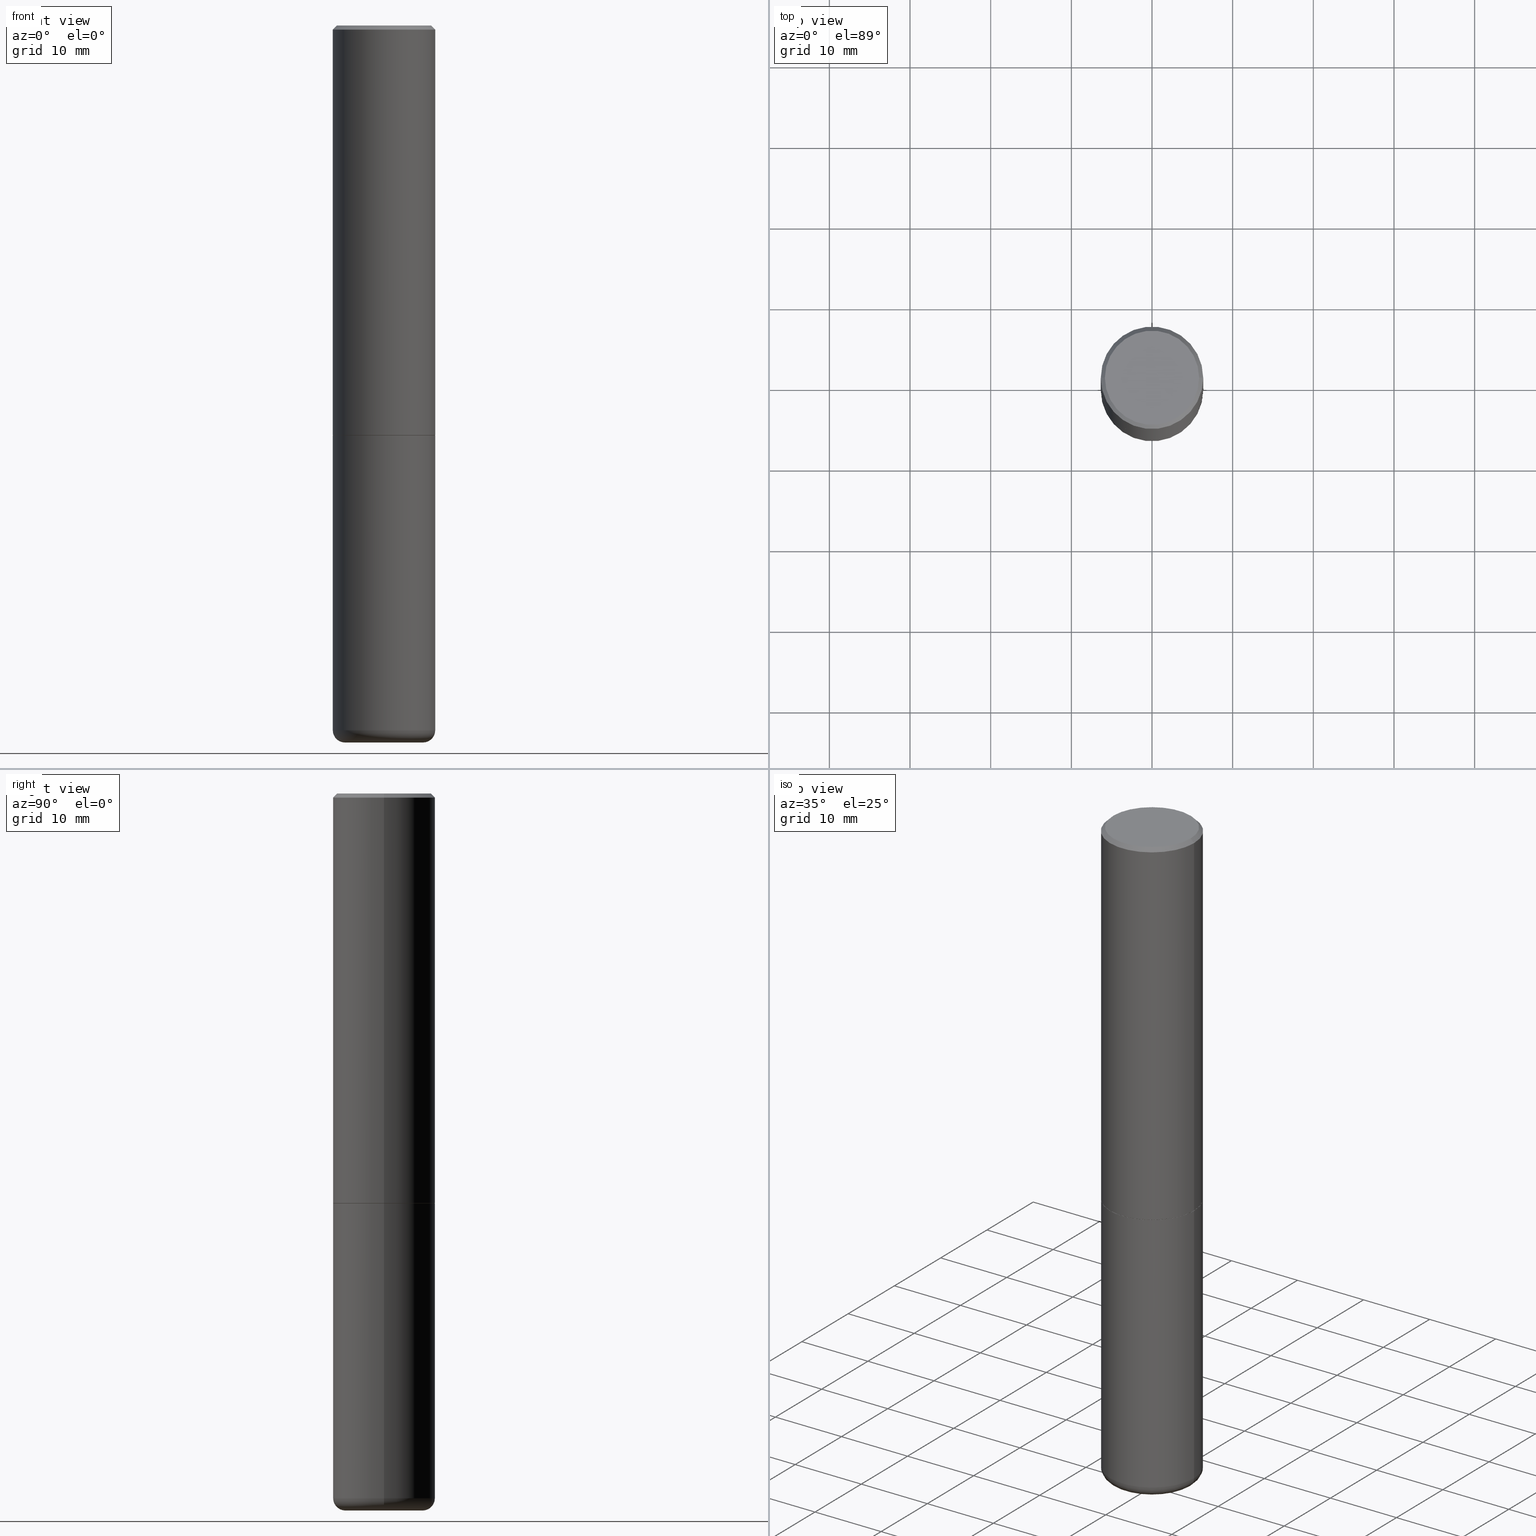
[diagram: canonical four-view strip — front | top / right | iso, engineering-drawing reading convention]
A machine part, canonical four-view strip (front | top / right | iso — engineering-drawing reading convention). The complete STEP part file that produces these views, byte-faithful:
ISO-10303-21;
HEADER;
FILE_DESCRIPTION (( 'STEP AP203' ),
    '1' );
FILE_NAME ('77194.STEP',
    '2024-03-06T16:22:38',
    ( '' ),
    ( '' ),
    'SwSTEP 2.0',
    'SolidWorks 2023',
    '' );
FILE_SCHEMA (( 'CONFIG_CONTROL_DESIGN' ));
ENDSEC;

DATA;
#1 = FACE_OUTER_BOUND ( 'NONE', #159, .T. ) ;
#2 = EDGE_LOOP ( 'NONE', ( #222, #415, #68, #197 ) ) ;
#3 = PLANE ( 'NONE',  #254 ) ;
#4 = VERTEX_POINT ( 'NONE', #63 ) ;
#5 = DATE_TIME_ROLE ( 'classification_date' ) ;
#6 = AXIS2_PLACEMENT_3D ( 'NONE', #11, #8, #188 ) ;
#7 = DATE_TIME_ROLE ( 'creation_date' ) ;
#8 = DIRECTION ( 'NONE',  ( -2.445468806185136597E-29, 3.491481338843145583E-15, 1.000000000000000000 ) ) ;
#9 = MECHANICAL_CONTEXT ( 'NONE', #351, 'mechanical' ) ;
#10 = MANIFOLD_SOLID_BREP ( 'Body-Move/Copy2[2]', #51 ) ;
#11 = CARTESIAN_POINT ( 'NONE',  ( 4.890937612370287172E-31, -6.982962677686310098E-17, -0.02000000000000005593 ) ) ;
#12 = CARTESIAN_POINT ( 'NONE',  ( 0.2500000000000001110, -1.745740669421567467E-15, 1.219044193948984509E-29 ) ) ;
#13 = CONICAL_SURFACE ( 'NONE', #251, 0.2489999999999999991, 0.7853981633975507526 ) ;
#14 = ADVANCED_FACE ( 'NONE', ( #1 ), #344, .F. ) ;
#15 = APPROVAL_PERSON_ORGANIZATION ( #32, #258, #393 ) ;
#16 = DIRECTION ( 'NONE',  ( -2.445468806185136597E-29, 3.491481338843145583E-15, 1.000000000000000000 ) ) ;
#17 = LINE ( 'NONE', #392, #126 ) ;
#18 = APPROVAL ( #104, 'UNSPECIFIED' ) ;
#19 = APPLICATION_CONTEXT ( 'configuration controlled 3d designs of mechanical parts and assemblies' ) ;
#20 = PRODUCT_DEFINITION_FORMATION_WITH_SPECIFIED_SOURCE ( 'ANY', '', #53, .NOT_KNOWN. ) ;
#21 = EDGE_LOOP ( 'NONE', ( #380, #273, #327, #411 ) ) ;
#22 = PERSON_AND_ORGANIZATION_ROLE ( 'creator' ) ;
#23 = EDGE_CURVE ( 'NONE', #323, #281, #96, .T. ) ;
#24 = ORIENTED_EDGE ( 'NONE', *, *, #314, .T. ) ;
#25 = DIRECTION ( 'NONE',  ( 1.000000000000000000, -6.982962677686267499E-15, 4.876225828469310563E-29 ) ) ;
#26 = CIRCLE ( 'NONE', #267, 0.2500000000000000000 ) ;
#27 = AXIS2_PLACEMENT_3D ( 'NONE', #231, #390, #257 ) ;
#28 = DIRECTION ( 'NONE',  ( -2.445468806185136597E-29, 3.491481338843145583E-15, 1.000000000000000000 ) ) ;
#29 = VERTEX_POINT ( 'NONE', #119 ) ;
#30 = DIRECTION ( 'NONE',  ( -1.000000000000000000, 7.105427357600997914E-15, 0.000000000000000000 ) ) ;
#31 = ADVANCED_FACE ( 'NONE', ( #408 ), #331, .T. ) ;
#32 = PERSON_AND_ORGANIZATION ( #388, #342 ) ;
#33 = ORIENTED_EDGE ( 'NONE', *, *, #162, .T. ) ;
#34 = CONICAL_SURFACE ( 'NONE', #239, 0.2499999999999999167, 0.7853981633974469467 ) ;
#35 = CIRCLE ( 'NONE', #154, 0.05999999999999994227 ) ;
#36 = ORIENTED_EDGE ( 'NONE', *, *, #162, .F. ) ;
#37 = CARTESIAN_POINT ( 'NONE',  ( 0.2500000000000000000, -8.728703347107857054E-15, -2.000000000000000000 ) ) ;
#38 = CARTESIAN_POINT ( 'NONE',  ( -0.2500000000000001110, 1.776356839400251254E-15, -1.229733772563727006E-29 ) ) ;
#39 = DATE_AND_TIME ( #136, #44 ) ;
#40 = DIRECTION ( 'NONE',  ( 1.000000000000000000, -6.982962677686266711E-15, 4.876176775795935793E-29 ) ) ;
#41 = ADVANCED_FACE ( 'NONE', ( #406 ), #34, .T. ) ;
#42 = PRODUCT_DEFINITION ( 'UNKNOWN', '', #20, #410 ) ;
#43 = DIRECTION ( 'NONE',  ( 1.000000000000000000, -6.982962677686266711E-15, 4.876176775795935793E-29 ) ) ;
#44 = LOCAL_TIME ( 11, 22, 38.00000000000000000, #169 ) ;
#45 = CARTESIAN_POINT ( 'NONE',  ( 0.000000000000000000, 0.000000000000000000, 0.000000000000000000 ) ) ;
#46 = LINE ( 'NONE', #181, #55 ) ;
#47 = LINE ( 'NONE', #183, #194 ) ;
#48 = CARTESIAN_POINT ( 'NONE',  ( -0.2499999999999999722, -1.023433896622016898E-14, -3.439999999999999947 ) ) ;
#49 = DIRECTION ( 'NONE',  ( -1.000000000000000000, 6.982962677686265922E-15, -4.876176775795935793E-29 ) ) ;
#50 = CARTESIAN_POINT ( 'NONE',  ( 8.559140821647976968E-29, -1.222018468595100934E-14, -3.500000000000000000 ) ) ;
#51 = CLOSED_SHELL ( 'NONE', ( #103, #359, #146, #41, #207, #221, #14, #345 ) ) ;
#52 = CC_DESIGN_APPROVAL ( #258, ( #42 ) ) ;
#53 = PRODUCT ( '77194', '77194', '', ( #9 ) ) ;
#54 = ORIENTED_EDGE ( 'NONE', *, *, #108, .F. ) ;
#55 = VECTOR ( 'NONE', #339, 39.37007874015748143 ) ;
#56 = AXIS2_PLACEMENT_3D ( 'NONE', #45, #179, #298 ) ;
#57 = FACE_OUTER_BOUND ( 'NONE', #279, .T. ) ;
#58 = EDGE_CURVE ( 'NONE', #357, #249, #316, .T. ) ;
#59 = VERTEX_POINT ( 'NONE', #404 ) ;
#60 = ORIENTED_EDGE ( 'NONE', *, *, #212, .T. ) ;
#61 = CIRCLE ( 'NONE', #158, 0.05999999999999994227 ) ;
#62 = VECTOR ( 'NONE', #264, 39.37007874015748143 ) ;
#63 = CARTESIAN_POINT ( 'NONE',  ( 0.1899999999999999745, -1.354694759471140096E-14, -3.500000000000000000 ) ) ;
#64 = ORIENTED_EDGE ( 'NONE', *, *, #195, .T. ) ;
#65 = DIRECTION ( 'NONE',  ( -2.445468806185136597E-29, 3.491481338843145583E-15, 1.000000000000000000 ) ) ;
#66 = VERTEX_POINT ( 'NONE', #48 ) ;
#67 = DIRECTION ( 'NONE',  ( -2.445468806185136877E-29, 3.491481338843145188E-15, 1.000000000000000000 ) ) ;
#68 = ORIENTED_EDGE ( 'NONE', *, *, #240, .F. ) ;
#69 = CARTESIAN_POINT ( 'NONE',  ( 8.412412693276869938E-29, -1.201069580562042103E-14, -3.439999999999999947 ) ) ;
#70 = AXIS2_PLACEMENT_3D ( 'NONE', #143, #114, #301 ) ;
#71 = TOROIDAL_SURFACE ( 'NONE', #361, 0.1899999999999999745, 0.05999999999999995615 ) ;
#72 = FACE_OUTER_BOUND ( 'NONE', #350, .T. ) ;
#73 = PERSON_AND_ORGANIZATION_ROLE ( 'classification_officer' ) ;
#74 = DIRECTION ( 'NONE',  ( -2.445468806185136597E-29, 3.491481338843145583E-15, 1.000000000000000000 ) ) ;
#75 = APPLICATION_PROTOCOL_DEFINITION ( 'international standard', 'config_control_design', 1994, #351 ) ;
#76 = DATE_AND_TIME ( #398, #113 ) ;
#77 = AXIS2_PLACEMENT_3D ( 'NONE', #377, #338, #82 ) ;
#78 = FACE_OUTER_BOUND ( 'NONE', #2, .T. ) ;
#79 = EDGE_CURVE ( 'NONE', #59, #357, #184, .T. ) ;
#80 = DIRECTION ( 'NONE',  ( -2.445468806185136597E-29, 3.491481338843145583E-15, 1.000000000000000000 ) ) ;
#81 = DIRECTION ( 'NONE',  ( -1.000000000000000000, 6.982962677686267499E-15, 0.000000000000000000 ) ) ;
#82 = DIRECTION ( 'NONE',  ( -1.000000000000000000, 6.982962677686267499E-15, 0.000000000000000000 ) ) ;
#83 = CARTESIAN_POINT ( 'NONE',  ( 4.890937612370273194E-29, -6.982962677686291165E-15, -2.000000000000000000 ) ) ;
#84 = CIRCLE ( 'NONE', #373, 0.2500000000000002776 ) ;
#85 = DIRECTION ( 'NONE',  ( 1.000000000000000000, -6.982962677686267499E-15, 0.000000000000000000 ) ) ;
#86 = CC_DESIGN_PERSON_AND_ORGANIZATION_ASSIGNMENT ( #106, #237, ( #20 ) ) ;
#87 = ORIENTED_EDGE ( 'NONE', *, *, #314, .F. ) ;
#88 = TOROIDAL_SURFACE ( 'NONE', #260, 0.1899999999999999745, 0.05999999999999995615 ) ;
#89 = EDGE_CURVE ( 'NONE', #4, #229, #247, .T. ) ;
#90 = ORIENTED_EDGE ( 'NONE', *, *, #399, .F. ) ;
#91 = CARTESIAN_POINT ( 'NONE',  ( 2.087702828670439639E-46, -2.980686340760894400E-32, -8.537024980200822558E-18 ) ) ;
#92 = CC_DESIGN_DATE_AND_TIME_ASSIGNMENT ( #137, #5, ( #295 ) ) ;
#93 = ORIENTED_EDGE ( 'NONE', *, *, #276, .F. ) ;
#94 = CARTESIAN_POINT ( 'NONE',  ( 4.890937612370273194E-29, -6.982962677686291165E-15, -2.000000000000000000 ) ) ;
#95 = ORIENTED_EDGE ( 'NONE', *, *, #228, .T. ) ;
#96 = CIRCLE ( 'NONE', #230, 0.2500000000000000000 ) ;
#97 = ORIENTED_EDGE ( 'NONE', *, *, #79, .T. ) ;
#98 = DIRECTION ( 'NONE',  ( 1.000000000000000000, -6.982962677686266711E-15, 0.000000000000000000 ) ) ;
#99 = SHAPE_DEFINITION_REPRESENTATION ( #182, #144 ) ;
#100 = APPROVAL_STATUS ( 'not_yet_approved' ) ;
#101 = ORIENTED_EDGE ( 'NONE', *, *, #306, .F. ) ;
#102 = DIRECTION ( 'NONE',  ( 1.000000000000000000, -6.982962677686266711E-15, 4.876176775795935793E-29 ) ) ;
#103 = ADVANCED_FACE ( 'NONE', ( #269 ), #13, .T. ) ;
#104 = APPROVAL_STATUS ( 'not_yet_approved' ) ;
#105 = CARTESIAN_POINT ( 'NONE',  ( 1.606081415867840870E-15, 0.2299999999999999267, -8.073092204240237214E-16 ) ) ;
#106 = PERSON_AND_ORGANIZATION ( #388, #342 ) ;
#107 = CARTESIAN_POINT ( 'NONE',  ( 4.890937612370273194E-29, -6.982962677686291165E-15, -2.000000000000000000 ) ) ;
#108 = EDGE_CURVE ( 'NONE', #163, #59, #84, .T. ) ;
#109 = FACE_OUTER_BOUND ( 'NONE', #347, .T. ) ;
#110 = DIRECTION ( 'NONE',  ( -2.445468806185136877E-29, 3.491481338843145188E-15, 1.000000000000000000 ) ) ;
#111 = APPROVAL_STATUS ( 'not_yet_approved' ) ;
#112 = AXIS2_PLACEMENT_3D ( 'NONE', #308, #381, #250 ) ;
#113 = LOCAL_TIME ( 11, 22, 38.00000000000000000, #238 ) ;
#114 = DIRECTION ( 'NONE',  ( -2.445468806185136597E-29, 3.491481338843145583E-15, 1.000000000000000000 ) ) ;
#115 = CC_DESIGN_PERSON_AND_ORGANIZATION_ASSIGNMENT ( #364, #208, ( #20 ) ) ;
#116 = DIRECTION ( 'NONE',  ( -2.445468806185136597E-29, 3.491481338843145583E-15, 1.000000000000000000 ) ) ;
#117 = CYLINDRICAL_SURFACE ( 'NONE', #132, 0.2500000000000001110 ) ;
#118 = FACE_OUTER_BOUND ( 'NONE', #315, .T. ) ;
#119 = CARTESIAN_POINT ( 'NONE',  ( 0.2489999999999999991, -8.721720384430171040E-15, -2.000000000000000000 ) ) ;
#120 = AXIS2_PLACEMENT_3D ( 'NONE', #107, #245, #337 ) ;
#121 = EDGE_CURVE ( 'NONE', #417, #281, #46, .T. ) ;
#122 = DIRECTION ( 'NONE',  ( 1.000000000000000000, -6.982962677686266711E-15, 0.000000000000000000 ) ) ;
#123 = EDGE_LOOP ( 'NONE', ( #193, #134 ) ) ;
#124 = CYLINDRICAL_SURFACE ( 'NONE', #112, 0.2500000000000001110 ) ;
#125 = ORIENTED_EDGE ( 'NONE', *, *, #189, .F. ) ;
#126 = VECTOR ( 'NONE', #335, 39.37007874015748143 ) ;
#127 = AXIS2_PLACEMENT_3D ( 'NONE', #355, #65, #98 ) ;
#128 = ORIENTED_EDGE ( 'NONE', *, *, #121, .F. ) ;
#129 = ORIENTED_EDGE ( 'NONE', *, *, #382, .F. ) ;
#130 = LINE ( 'NONE', #330, #326 ) ;
#131 = CARTESIAN_POINT ( 'NONE',  ( 2.087702828670439639E-46, -2.980686340760894400E-32, -8.537024980200822558E-18 ) ) ;
#132 = AXIS2_PLACEMENT_3D ( 'NONE', #372, #16, #40 ) ;
#133 = EDGE_LOOP ( 'NONE', ( #24, #196, #384, #125 ) ) ;
#134 = ORIENTED_EDGE ( 'NONE', *, *, #180, .F. ) ;
#135 = DIRECTION ( 'NONE',  ( 2.438088387897960049E-29, -3.491481338843145188E-15, -1.000000000000000000 ) ) ;
#136 = CALENDAR_DATE ( 2024, 6, 3 ) ;
#137 = DATE_AND_TIME ( #292, #376 ) ;
#138 = CC_DESIGN_SECURITY_CLASSIFICATION ( #295, ( #20 ) ) ;
#139 = CARTESIAN_POINT ( 'NONE',  ( 0.2499999999999999722, -1.375643647504198770E-14, -3.439999999999999947 ) ) ;
#140 = APPROVAL_ROLE ( '' ) ;
#141 = CARTESIAN_POINT ( 'NONE',  ( 4.888492143564087591E-29, -6.979471196347447369E-15, -1.998999999999999888 ) ) ;
#142 = DIRECTION ( 'NONE',  ( 2.438088387897960049E-29, -3.491481338843145188E-15, -1.000000000000000000 ) ) ;
#143 = CARTESIAN_POINT ( 'NONE',  ( 4.890937612370273194E-29, -6.982962677686291165E-15, -2.000000000000000000 ) ) ;
#144 = ADVANCED_BREP_SHAPE_REPRESENTATION ( '77194', ( #155, #10, #56 ), #209 ) ;
#145 = DIRECTION ( 'NONE',  ( -2.445468806185136597E-29, 3.491481338843145583E-15, 1.000000000000000000 ) ) ;
#146 = ADVANCED_FACE ( 'NONE', ( #187 ), #386, .T. ) ;
#147 = DIRECTION ( 'NONE',  ( 2.438088387897960049E-29, -3.491481338843145188E-15, -1.000000000000000000 ) ) ;
#148 = AXIS2_PLACEMENT_3D ( 'NONE', #242, #151, #43 ) ;
#149 = DIRECTION ( 'NONE',  ( 1.000000000000000000, -6.982962677686273021E-15, 0.000000000000000000 ) ) ;
#150 = DIRECTION ( 'NONE',  ( -6.982962677686266711E-15, -1.000000000000000000, 3.491481338843145583E-15 ) ) ;
#151 = DIRECTION ( 'NONE',  ( -2.445468806185136597E-29, 3.491481338843145583E-15, 1.000000000000000000 ) ) ;
#152 = CARTESIAN_POINT ( 'NONE',  ( 0.2499999999999999167, -1.784954126219745400E-15, -0.02000000000000005593 ) ) ;
#153 = CARTESIAN_POINT ( 'NONE',  ( -0.2500000000000002776, -1.748293572161900530E-15, -1.998999999999999888 ) ) ;
#154 = AXIS2_PLACEMENT_3D ( 'NONE', #198, #320, #30 ) ;
#155 = MANIFOLD_SOLID_BREP ( 'Body-Move/Copy2[1]', #223 ) ;
#156 = EDGE_CURVE ( 'NONE', #281, #323, #341, .T. ) ;
#157 = DIRECTION ( 'NONE',  ( 1.000000000000000000, -6.982962677686266711E-15, 0.000000000000000000 ) ) ;
#158 = AXIS2_PLACEMENT_3D ( 'NONE', #272, #150, #300 ) ;
#159 = EDGE_LOOP ( 'NONE', ( #87, #101 ) ) ;
#160 = CARTESIAN_POINT ( 'NONE',  ( -0.1899999999999999745, -1.055224622711349575E-14, -3.500000000000000000 ) ) ;
#161 = ORIENTED_EDGE ( 'NONE', *, *, #313, .T. ) ;
#162 = EDGE_CURVE ( 'NONE', #66, #323, #47, .T. ) ;
#163 = VERTEX_POINT ( 'NONE', #153 ) ;
#164 = LINE ( 'NONE', #38, #360 ) ;
#165 = CIRCLE ( 'NONE', #214, 0.2299999999999999267 ) ;
#166 = EDGE_LOOP ( 'NONE', ( #172, #319, #161, #253 ) ) ;
#167 = DIRECTION ( 'NONE',  ( 1.000000000000000000, -6.982962677686270655E-15, 0.000000000000000000 ) ) ;
#168 = EDGE_CURVE ( 'NONE', #4, #417, #61, .T. ) ;
#169 = COORDINATED_UNIVERSAL_TIME_OFFSET ( 5, 0, .BEHIND. ) ;
#170 = ORIENTED_EDGE ( 'NONE', *, *, #336, .T. ) ;
#171 = DIRECTION ( 'NONE',  ( -2.445468806185136597E-29, 3.491481338843145583E-15, 1.000000000000000000 ) ) ;
#172 = ORIENTED_EDGE ( 'NONE', *, *, #336, .F. ) ;
#173 = CYLINDRICAL_SURFACE ( 'NONE', #375, 0.2500000000000000000 ) ;
#174 = CC_DESIGN_PERSON_AND_ORGANIZATION_ASSIGNMENT ( #362, #73, ( #295 ) ) ;
#175 = COORDINATED_UNIVERSAL_TIME_OFFSET ( 5, 0, .BEHIND. ) ;
#176 = CARTESIAN_POINT ( 'NONE',  ( -0.2489999999999999991, -5.213711265643641709E-15, -2.000000000000000000 ) ) ;
#177 = CIRCLE ( 'NONE', #285, 0.2500000000000000000 ) ;
#178 = DIRECTION ( 'NONE',  ( -2.445468806185136597E-29, 3.491481338843145583E-15, 1.000000000000000000 ) ) ;
#179 = DIRECTION ( 'NONE',  ( 0.000000000000000000, 0.000000000000000000, 1.000000000000000000 ) ) ;
#180 = EDGE_CURVE ( 'NONE', #229, #4, #309, .T. ) ;
#181 = CARTESIAN_POINT ( 'NONE',  ( 0.2500000000000000000, -1.745740669421566678E-15, 1.219044193948983948E-29 ) ) ;
#182 = PRODUCT_DEFINITION_SHAPE ( 'NONE', 'NONE',  #42 ) ;
#183 = CARTESIAN_POINT ( 'NONE',  ( -0.2500000000000000000, 1.776356839400250465E-15, -1.229733772563726445E-29 ) ) ;
#184 = LINE ( 'NONE', #12, #414 ) ;
#185 = CARTESIAN_POINT ( 'NONE',  ( 8.412412693276869938E-29, -1.201069580562042103E-14, -3.439999999999999947 ) ) ;
#186 = DIRECTION ( 'NONE',  ( 1.000000000000000000, -6.982962677686273021E-15, 0.000000000000000000 ) ) ;
#187 = FACE_OUTER_BOUND ( 'NONE', #352, .T. ) ;
#188 = DIRECTION ( 'NONE',  ( 1.000000000000000000, -6.982962677686267499E-15, 0.000000000000000000 ) ) ;
#189 = EDGE_CURVE ( 'NONE', #29, #59, #17, .T. ) ;
#190 = VECTOR ( 'NONE', #294, 39.37007874015748143 ) ;
#191 = APPROVAL ( #111, 'UNSPECIFIED' ) ;
#192 = PERSON_AND_ORGANIZATION_ROLE ( 'design_owner' ) ;
#193 = ORIENTED_EDGE ( 'NONE', *, *, #89, .F. ) ;
#194 = VECTOR ( 'NONE', #110, 39.37007874015748143 ) ;
#195 = EDGE_CURVE ( 'NONE', #66, #417, #177, .T. ) ;
#196 = ORIENTED_EDGE ( 'NONE', *, *, #382, .T. ) ;
#197 = ORIENTED_EDGE ( 'NONE', *, *, #168, .F. ) ;
#198 = CARTESIAN_POINT ( 'NONE',  ( -0.1899999999999999745, -1.066066460767623105E-14, -3.439999999999999947 ) ) ;
#199 = APPROVAL_DATE_TIME ( #39, #18 ) ;
#200 = ORIENTED_EDGE ( 'NONE', *, *, #240, .T. ) ;
#201 = AXIS2_PLACEMENT_3D ( 'NONE', #131, #324, #290 ) ;
#202 = ORIENTED_EDGE ( 'NONE', *, *, #313, .F. ) ;
#203 = DIRECTION ( 'NONE',  ( -2.445468806185136597E-29, 3.491481338843145583E-15, 1.000000000000000000 ) ) ;
#204 = DIMENSIONAL_EXPONENTS ( 1.000000000000000000, 0.000000000000000000, 0.000000000000000000, 0.000000000000000000, 0.000000000000000000, 0.000000000000000000, 0.000000000000000000 ) ;
#205 = COORDINATED_UNIVERSAL_TIME_OFFSET ( 5, 0, .BEHIND. ) ;
#206 = DIRECTION ( 'NONE',  ( 1.000000000000000000, -6.982962677686265133E-15, 4.883557194083112340E-29 ) ) ;
#207 = ADVANCED_FACE ( 'NONE', ( #413 ), #124, .T. ) ;
#208 = PERSON_AND_ORGANIZATION_ROLE ( 'design_supplier' ) ;
#209 =( GEOMETRIC_REPRESENTATION_CONTEXT ( 3 ) GLOBAL_UNCERTAINTY_ASSIGNED_CONTEXT ( ( #370 ) ) GLOBAL_UNIT_ASSIGNED_CONTEXT ( ( #403, #407, #340 ) ) REPRESENTATION_CONTEXT ( 'NONE', 'WORKASPACE' ) );
#210 = DIRECTION ( 'NONE',  ( 2.445468806185136597E-29, -3.491481338843145583E-15, -1.000000000000000000 ) ) ;
#211 = DIRECTION ( 'NONE',  ( -1.000000000000000000, 6.982962677686265922E-15, -4.876176775795935793E-29 ) ) ;
#212 = EDGE_CURVE ( 'NONE', #59, #163, #277, .T. ) ;
#213 = CARTESIAN_POINT ( 'NONE',  ( 4.890937612370273194E-29, -6.982962677686291165E-15, -2.000000000000000000 ) ) ;
#214 = AXIS2_PLACEMENT_3D ( 'NONE', #91, #220, #25 ) ;
#215 = DIRECTION ( 'NONE',  ( -2.445468806185136597E-29, 3.491481338843145583E-15, 1.000000000000000000 ) ) ;
#216 = AXIS2_PLACEMENT_3D ( 'NONE', #305, #178, #149 ) ;
#217 = CIRCLE ( 'NONE', #232, 0.2499999999999999167 ) ;
#218 = CARTESIAN_POINT ( 'NONE',  ( 4.888492143564087591E-29, -6.979471196347447369E-15, -1.998999999999999888 ) ) ;
#219 = EDGE_LOOP ( 'NONE', ( #36, #64, #283, #374 ) ) ;
#220 = DIRECTION ( 'NONE',  ( -2.445468806185136597E-29, 3.491481338843145583E-15, 1.000000000000000000 ) ) ;
#221 = ADVANCED_FACE ( 'NONE', ( #57 ), #293, .T. ) ;
#222 = ORIENTED_EDGE ( 'NONE', *, *, #89, .T. ) ;
#223 = CLOSED_SHELL ( 'NONE', ( #291, #405, #328, #31, #248, #235 ) ) ;
#224 = APPROVAL_PERSON_ORGANIZATION ( #401, #191, #140 ) ;
#225 = ORIENTED_EDGE ( 'NONE', *, *, #299, .T. ) ;
#226 = ORIENTED_EDGE ( 'NONE', *, *, #58, .F. ) ;
#227 = FACE_OUTER_BOUND ( 'NONE', #307, .T. ) ;
#228 = EDGE_CURVE ( 'NONE', #252, #389, #165, .T. ) ;
#229 = VERTEX_POINT ( 'NONE', #160 ) ;
#230 = AXIS2_PLACEMENT_3D ( 'NONE', #83, #215, #366 ) ;
#231 = CARTESIAN_POINT ( 'NONE',  ( 4.890937612370273194E-29, -6.982962677686291165E-15, -2.000000000000000000 ) ) ;
#232 = AXIS2_PLACEMENT_3D ( 'NONE', #371, #334, #85 ) ;
#233 = DIRECTION ( 'NONE',  ( -1.000000000000000000, 6.982962677686265922E-15, -4.876176775795935793E-29 ) ) ;
#234 = APPROVAL_ROLE ( '' ) ;
#235 = ADVANCED_FACE ( 'NONE', ( #280 ), #416, .T. ) ;
#236 = DIRECTION ( 'NONE',  ( -2.445468806185136597E-29, 3.491481338843145583E-15, 1.000000000000000000 ) ) ;
#237 = PERSON_AND_ORGANIZATION_ROLE ( 'creator' ) ;
#238 = COORDINATED_UNIVERSAL_TIME_OFFSET ( 5, 0, .BEHIND. ) ;
#239 = AXIS2_PLACEMENT_3D ( 'NONE', #262, #210, #81 ) ;
#240 = EDGE_CURVE ( 'NONE', #417, #66, #26, .T. ) ;
#241 = CARTESIAN_POINT ( 'NONE',  ( 8.412412693276869938E-29, -1.201069580562042103E-14, -3.439999999999999947 ) ) ;
#242 = CARTESIAN_POINT ( 'NONE',  ( 0.000000000000000000, 0.000000000000000000, 0.000000000000000000 ) ) ;
#243 = LINE ( 'NONE', #152, #62 ) ;
#244 = CC_DESIGN_PERSON_AND_ORGANIZATION_ASSIGNMENT ( #343, #22, ( #42 ) ) ;
#245 = DIRECTION ( 'NONE',  ( -2.438088387897960049E-29, 3.491481338843145188E-15, 1.000000000000000000 ) ) ;
#246 = PLANE ( 'NONE',  #368 ) ;
#247 = CIRCLE ( 'NONE', #216, 0.1899999999999999745 ) ;
#248 = ADVANCED_FACE ( 'NONE', ( #358 ), #88, .T. ) ;
#249 = VERTEX_POINT ( 'NONE', #259 ) ;
#250 = DIRECTION ( 'NONE',  ( 1.000000000000000000, -6.982962677686266711E-15, 4.876176775795935793E-29 ) ) ;
#251 = AXIS2_PLACEMENT_3D ( 'NONE', #213, #116, #297 ) ;
#252 = VERTEX_POINT ( 'NONE', #394 ) ;
#253 = ORIENTED_EDGE ( 'NONE', *, *, #399, .T. ) ;
#254 = AXIS2_PLACEMENT_3D ( 'NONE', #397, #142, #211 ) ;
#255 = VERTEX_POINT ( 'NONE', #282 ) ;
#256 = ORIENTED_EDGE ( 'NONE', *, *, #189, .T. ) ;
#257 = DIRECTION ( 'NONE',  ( 1.000000000000000000, -6.982962677686266711E-15, 0.000000000000000000 ) ) ;
#258 = APPROVAL ( #100, 'UNSPECIFIED' ) ;
#259 = CARTESIAN_POINT ( 'NONE',  ( -0.2499999999999999167, 1.675911042644703182E-15, -0.02000000000000005593 ) ) ;
#260 = AXIS2_PLACEMENT_3D ( 'NONE', #418, #74, #206 ) ;
#261 = LENGTH_MEASURE_WITH_UNIT ( LENGTH_MEASURE( 0.02539999999999999897 ), #271 );
#262 = CARTESIAN_POINT ( 'NONE',  ( 4.890937612370287172E-31, -6.982962677686310098E-17, -0.02000000000000005593 ) ) ;
#263 = APPROVAL_DATE_TIME ( #266, #258 ) ;
#264 = DIRECTION ( 'NONE',  ( 0.7071067811865465735, -7.319954787623252890E-15, -0.7071067811865484609 ) ) ;
#265 = DATE_AND_TIME ( #296, #310 ) ;
#266 = DATE_AND_TIME ( #303, #387 ) ;
#267 = AXIS2_PLACEMENT_3D ( 'NONE', #69, #203, #167 ) ;
#268 = CC_DESIGN_APPROVAL ( #191, ( #20 ) ) ;
#269 = FACE_OUTER_BOUND ( 'NONE', #133, .T. ) ;
#270 = DIRECTION ( 'NONE',  ( -2.445468806185136877E-29, 3.491481338843145188E-15, 1.000000000000000000 ) ) ;
#271 =( LENGTH_UNIT ( ) NAMED_UNIT ( * ) SI_UNIT ( $, .METRE. ) );
#272 = CARTESIAN_POINT ( 'NONE',  ( 0.1899999999999999745, -1.333745871438081265E-14, -3.439999999999999947 ) ) ;
#273 = ORIENTED_EDGE ( 'NONE', *, *, #180, .T. ) ;
#274 = ORIENTED_EDGE ( 'NONE', *, *, #156, .F. ) ;
#275 = DIRECTION ( 'NONE',  ( 1.000000000000000000, -6.982962677686270655E-15, 0.000000000000000000 ) ) ;
#276 = EDGE_CURVE ( 'NONE', #163, #249, #164, .T. ) ;
#277 = CIRCLE ( 'NONE', #348, 0.2500000000000002776 ) ;
#278 = APPROVAL_PERSON_ORGANIZATION ( #396, #18, #234 ) ;
#279 = EDGE_LOOP ( 'NONE', ( #129, #356, #256, #54 ) ) ;
#280 = FACE_OUTER_BOUND ( 'NONE', #123, .T. ) ;
#281 = VERTEX_POINT ( 'NONE', #37 ) ;
#282 = CARTESIAN_POINT ( 'NONE',  ( -0.2489999999999999991, -5.208412811295418518E-15, -2.000000000000000000 ) ) ;
#283 = ORIENTED_EDGE ( 'NONE', *, *, #121, .T. ) ;
#284 = CARTESIAN_POINT ( 'NONE',  ( -0.2500000000000000000, -7.720472402253106025E-15, -2.000000000000000000 ) ) ;
#285 = AXIS2_PLACEMENT_3D ( 'NONE', #241, #318, #275 ) ;
#286 = CIRCLE ( 'NONE', #127, 0.2489999999999999991 ) ;
#287 = ORIENTED_EDGE ( 'NONE', *, *, #108, .T. ) ;
#288 = CARTESIAN_POINT ( 'NONE',  ( 0.000000000000000000, 0.000000000000000000, 0.000000000000000000 ) ) ;
#289 = ORIENTED_EDGE ( 'NONE', *, *, #228, .F. ) ;
#290 = DIRECTION ( 'NONE',  ( 1.000000000000000000, -6.982962677686267499E-15, 4.876225828469310563E-29 ) ) ;
#291 = ADVANCED_FACE ( 'NONE', ( #72 ), #173, .T. ) ;
#292 = CALENDAR_DATE ( 2024, 6, 3 ) ;
#293 = CONICAL_SURFACE ( 'NONE', #395, 0.2489999999999999991, 0.7853981633975507526 ) ;
#294 = DIRECTION ( 'NONE',  ( -0.7071067811866199593, 7.493145998870616062E-15, 0.7071067811864750752 ) ) ;
#295 = SECURITY_CLASSIFICATION ( '', '', #332 ) ;
#296 = CALENDAR_DATE ( 2024, 6, 3 ) ;
#297 = DIRECTION ( 'NONE',  ( 1.000000000000000000, -6.982962677686266711E-15, 0.000000000000000000 ) ) ;
#298 = DIRECTION ( 'NONE',  ( 1.000000000000000000, 0.000000000000000000, 0.000000000000000000 ) ) ;
#299 = EDGE_CURVE ( 'NONE', #389, #252, #325, .T. ) ;
#300 = DIRECTION ( 'NONE',  ( 1.000000000000000000, -6.982962677686274599E-15, 0.000000000000000000 ) ) ;
#301 = DIRECTION ( 'NONE',  ( 1.000000000000000000, -6.982962677686266711E-15, 0.000000000000000000 ) ) ;
#302 = CIRCLE ( 'NONE', #27, 0.2489999999999999991 ) ;
#303 = CALENDAR_DATE ( 2024, 6, 3 ) ;
#304 = DIRECTION ( 'NONE',  ( 1.000000000000000000, -6.982962677686265133E-15, 4.883557194083112340E-29 ) ) ;
#305 = CARTESIAN_POINT ( 'NONE',  ( 8.559140821647976968E-29, -1.222018468595100934E-14, -3.500000000000000000 ) ) ;
#306 = EDGE_CURVE ( 'NONE', #255, #29, #302, .T. ) ;
#307 = EDGE_LOOP ( 'NONE', ( #346, #354 ) ) ;
#308 = CARTESIAN_POINT ( 'NONE',  ( 0.000000000000000000, 0.000000000000000000, 0.000000000000000000 ) ) ;
#309 = CIRCLE ( 'NONE', #409, 0.1899999999999999745 ) ;
#310 = LOCAL_TIME ( 11, 22, 38.00000000000000000, #205 ) ;
#311 = PERSON_AND_ORGANIZATION ( #388, #342 ) ;
#312 = ORIENTED_EDGE ( 'NONE', *, *, #79, .F. ) ;
#313 = EDGE_CURVE ( 'NONE', #389, #249, #130, .T. ) ;
#314 = EDGE_CURVE ( 'NONE', #29, #255, #286, .T. ) ;
#315 = EDGE_LOOP ( 'NONE', ( #225, #95 ) ) ;
#316 = CIRCLE ( 'NONE', #6, 0.2499999999999999167 ) ;
#317 = ORIENTED_EDGE ( 'NONE', *, *, #58, .T. ) ;
#318 = DIRECTION ( 'NONE',  ( -2.445468806185136597E-29, 3.491481338843145583E-15, 1.000000000000000000 ) ) ;
#319 = ORIENTED_EDGE ( 'NONE', *, *, #299, .F. ) ;
#320 = DIRECTION ( 'NONE',  ( 7.105427357601001859E-15, 1.000000000000000000, -3.491481338843145583E-15 ) ) ;
#321 = EDGE_CURVE ( 'NONE', #229, #66, #35, .T. ) ;
#322 = APPLICATION_PROTOCOL_DEFINITION ( 'international standard', 'config_control_design', 1994, #19 ) ;
#323 = VERTEX_POINT ( 'NONE', #284 ) ;
#324 = DIRECTION ( 'NONE',  ( -2.445468806185136597E-29, 3.491481338843145583E-15, 1.000000000000000000 ) ) ;
#325 = CIRCLE ( 'NONE', #201, 0.2299999999999999267 ) ;
#326 = VECTOR ( 'NONE', #385, 39.37007874015748143 ) ;
#327 = ORIENTED_EDGE ( 'NONE', *, *, #168, .T. ) ;
#328 = ADVANCED_FACE ( 'NONE', ( #227 ), #3, .F. ) ;
#329 = COORDINATED_UNIVERSAL_TIME_OFFSET ( 5, 0, .BEHIND. ) ;
#330 = CARTESIAN_POINT ( 'NONE',  ( -0.2499999999999999167, 1.675911042644703182E-15, -0.02000000000000005593 ) ) ;
#331 = CYLINDRICAL_SURFACE ( 'NONE', #148, 0.2500000000000000000 ) ;
#332 = SECURITY_CLASSIFICATION_LEVEL ( 'unclassified' ) ;
#333 = DIRECTION ( 'NONE',  ( 1.000000000000000000, -6.982962677686266711E-15, 0.000000000000000000 ) ) ;
#334 = DIRECTION ( 'NONE',  ( -2.445468806185136597E-29, 3.491481338843145583E-15, 1.000000000000000000 ) ) ;
#335 = DIRECTION ( 'NONE',  ( 0.7071067811866199593, -2.468850131083015945E-15, 0.7071067811864750752 ) ) ;
#336 = EDGE_CURVE ( 'NONE', #252, #357, #243, .T. ) ;
#337 = DIRECTION ( 'NONE',  ( 1.000000000000000000, -6.982962677686265922E-15, 4.876176775795935793E-29 ) ) ;
#338 = DIRECTION ( 'NONE',  ( 2.445468806185136597E-29, -3.491481338843145583E-15, -1.000000000000000000 ) ) ;
#339 = DIRECTION ( 'NONE',  ( -2.445468806185136877E-29, 3.491481338843145188E-15, 1.000000000000000000 ) ) ;
#340 =( NAMED_UNIT ( * ) SI_UNIT ( $, .STERADIAN. ) SOLID_ANGLE_UNIT ( ) );
#341 = CIRCLE ( 'NONE', #70, 0.2500000000000000000 ) ;
#342 = ORGANIZATION ( 'UNSPECIFIED', 'UNSPECIFIED', '' ) ;
#343 = PERSON_AND_ORGANIZATION ( #388, #342 ) ;
#344 = PLANE ( 'NONE',  #120 ) ;
#345 = ADVANCED_FACE ( 'NONE', ( #118 ), #246, .F. ) ;
#346 = ORIENTED_EDGE ( 'NONE', *, *, #156, .T. ) ;
#347 = EDGE_LOOP ( 'NONE', ( #60, #378, #226, #312 ) ) ;
#348 = AXIS2_PLACEMENT_3D ( 'NONE', #218, #379, #122 ) ;
#349 = CC_DESIGN_APPROVAL ( #18, ( #295 ) ) ;
#350 = EDGE_LOOP ( 'NONE', ( #200, #33, #274, #128 ) ) ;
#351 = APPLICATION_CONTEXT ( 'configuration controlled 3d designs of mechanical parts and assemblies' ) ;
#352 = EDGE_LOOP ( 'NONE', ( #289, #170, #317, #202 ) ) ;
#353 = CARTESIAN_POINT ( 'NONE',  ( 8.559140821647976968E-29, -1.222018468595100934E-14, -3.500000000000000000 ) ) ;
#354 = ORIENTED_EDGE ( 'NONE', *, *, #23, .T. ) ;
#355 = CARTESIAN_POINT ( 'NONE',  ( 4.890937612370273194E-29, -6.982962677686291165E-15, -2.000000000000000000 ) ) ;
#356 = ORIENTED_EDGE ( 'NONE', *, *, #306, .T. ) ;
#357 = VERTEX_POINT ( 'NONE', #400 ) ;
#358 = FACE_OUTER_BOUND ( 'NONE', #21, .T. ) ;
#359 = ADVANCED_FACE ( 'NONE', ( #109 ), #117, .T. ) ;
#360 = VECTOR ( 'NONE', #67, 39.37007874015748143 ) ;
#361 = AXIS2_PLACEMENT_3D ( 'NONE', #185, #80, #304 ) ;
#362 = PERSON_AND_ORGANIZATION ( #388, #342 ) ;
#363 = LINE ( 'NONE', #176, #190 ) ;
#364 = PERSON_AND_ORGANIZATION ( #388, #342 ) ;
#365 = PRODUCT_RELATED_PRODUCT_CATEGORY ( 'detail', '', ( #53 ) ) ;
#366 = DIRECTION ( 'NONE',  ( 1.000000000000000000, -6.982962677686266711E-15, 0.000000000000000000 ) ) ;
#367 = CARTESIAN_POINT ( 'NONE',  ( -0.2299999999999999267, 1.640996229256272125E-15, -8.537024980212177841E-18 ) ) ;
#368 = AXIS2_PLACEMENT_3D ( 'NONE', #105, #147, #49 ) ;
#369 = APPROVAL_DATE_TIME ( #76, #191 ) ;
#370 = UNCERTAINTY_MEASURE_WITH_UNIT (LENGTH_MEASURE( 1.000000000000000082E-05 ), #403, 'distance_accuracy_value', 'NONE');
#371 = CARTESIAN_POINT ( 'NONE',  ( 4.890937612370287172E-31, -6.982962677686310098E-17, -0.02000000000000005593 ) ) ;
#372 = CARTESIAN_POINT ( 'NONE',  ( 0.000000000000000000, 0.000000000000000000, 0.000000000000000000 ) ) ;
#373 = AXIS2_PLACEMENT_3D ( 'NONE', #141, #145, #333 ) ;
#374 = ORIENTED_EDGE ( 'NONE', *, *, #23, .F. ) ;
#375 = AXIS2_PLACEMENT_3D ( 'NONE', #288, #171, #102 ) ;
#376 = LOCAL_TIME ( 11, 22, 38.00000000000000000, #329 ) ;
#377 = CARTESIAN_POINT ( 'NONE',  ( 4.890937612370287172E-31, -6.982962677686310098E-17, -0.02000000000000005593 ) ) ;
#378 = ORIENTED_EDGE ( 'NONE', *, *, #276, .T. ) ;
#379 = DIRECTION ( 'NONE',  ( -2.445468806185136597E-29, 3.491481338843145583E-15, 1.000000000000000000 ) ) ;
#380 = ORIENTED_EDGE ( 'NONE', *, *, #321, .F. ) ;
#381 = DIRECTION ( 'NONE',  ( -2.445468806185136597E-29, 3.491481338843145583E-15, 1.000000000000000000 ) ) ;
#382 = EDGE_CURVE ( 'NONE', #255, #163, #363, .T. ) ;
#383 = CC_DESIGN_DATE_AND_TIME_ASSIGNMENT ( #265, #7, ( #42 ) ) ;
#384 = ORIENTED_EDGE ( 'NONE', *, *, #212, .F. ) ;
#385 = DIRECTION ( 'NONE',  ( -0.7071067811865465735, 2.468850131082246805E-15, -0.7071067811865484609 ) ) ;
#386 = CONICAL_SURFACE ( 'NONE', #77, 0.2499999999999999167, 0.7853981633974469467 ) ;
#387 = LOCAL_TIME ( 11, 22, 38.00000000000000000, #175 ) ;
#388 = PERSON ( 'UNSPECIFIED', 'UNSPECIFIED', 'UNSPECIFIED', ('UNSPECIFIED'), ('UNSPECIFIED'), ('UNSPECIFIED') ) ;
#389 = VERTEX_POINT ( 'NONE', #367 ) ;
#390 = DIRECTION ( 'NONE',  ( -2.445468806185136597E-29, 3.491481338843145583E-15, 1.000000000000000000 ) ) ;
#391 = EDGE_LOOP ( 'NONE', ( #93, #287, #97, #90 ) ) ;
#392 = CARTESIAN_POINT ( 'NONE',  ( 0.2489999999999999991, -8.721720384430171040E-15, -2.000000000000000000 ) ) ;
#393 = APPROVAL_ROLE ( '' ) ;
#394 = CARTESIAN_POINT ( 'NONE',  ( 0.2299999999999999267, -1.681434332853598617E-15, -8.537024980189327067E-18 ) ) ;
#395 = AXIS2_PLACEMENT_3D ( 'NONE', #94, #28, #157 ) ;
#396 = PERSON_AND_ORGANIZATION ( #388, #342 ) ;
#397 = CARTESIAN_POINT ( 'NONE',  ( 3.364826205900701146E-29, -9.168441072617700951E-15, -2.000000000000000000 ) ) ;
#398 = CALENDAR_DATE ( 2024, 6, 3 ) ;
#399 = EDGE_CURVE ( 'NONE', #249, #357, #217, .T. ) ;
#400 = CARTESIAN_POINT ( 'NONE',  ( 0.2499999999999999167, -1.784954126219745400E-15, -0.02000000000000005593 ) ) ;
#401 = PERSON_AND_ORGANIZATION ( #388, #342 ) ;
#402 = AXIS2_PLACEMENT_3D ( 'NONE', #353, #135, #233 ) ;
#403 =( CONVERSION_BASED_UNIT ( 'INCH', #261 ) LENGTH_UNIT ( ) NAMED_UNIT ( #204 ) );
#404 = CARTESIAN_POINT ( 'NONE',  ( 0.2500000000000002776, -8.725211865769015625E-15, -1.998999999999999888 ) ) ;
#405 = ADVANCED_FACE ( 'NONE', ( #78 ), #71, .T. ) ;
#406 = FACE_OUTER_BOUND ( 'NONE', #166, .T. ) ;
#407 =( NAMED_UNIT ( * ) PLANE_ANGLE_UNIT ( ) SI_UNIT ( $, .RADIAN. ) );
#408 = FACE_OUTER_BOUND ( 'NONE', #219, .T. ) ;
#409 = AXIS2_PLACEMENT_3D ( 'NONE', #50, #236, #186 ) ;
#410 = DESIGN_CONTEXT ( 'detailed design', #19, 'design' ) ;
#411 = ORIENTED_EDGE ( 'NONE', *, *, #195, .F. ) ;
#412 = CC_DESIGN_PERSON_AND_ORGANIZATION_ASSIGNMENT ( #311, #192, ( #53 ) ) ;
#413 = FACE_OUTER_BOUND ( 'NONE', #391, .T. ) ;
#414 = VECTOR ( 'NONE', #270, 39.37007874015748143 ) ;
#415 = ORIENTED_EDGE ( 'NONE', *, *, #321, .T. ) ;
#416 = PLANE ( 'NONE',  #402 ) ;
#417 = VERTEX_POINT ( 'NONE', #139 ) ;
#418 = CARTESIAN_POINT ( 'NONE',  ( 8.412412693276869938E-29, -1.201069580562042103E-14, -3.439999999999999947 ) ) ;
ENDSEC;
END-ISO-10303-21;
